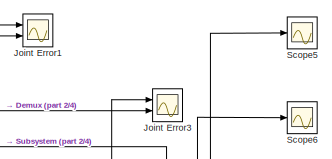
[diagram: root canvas - part 1/4, top right region]
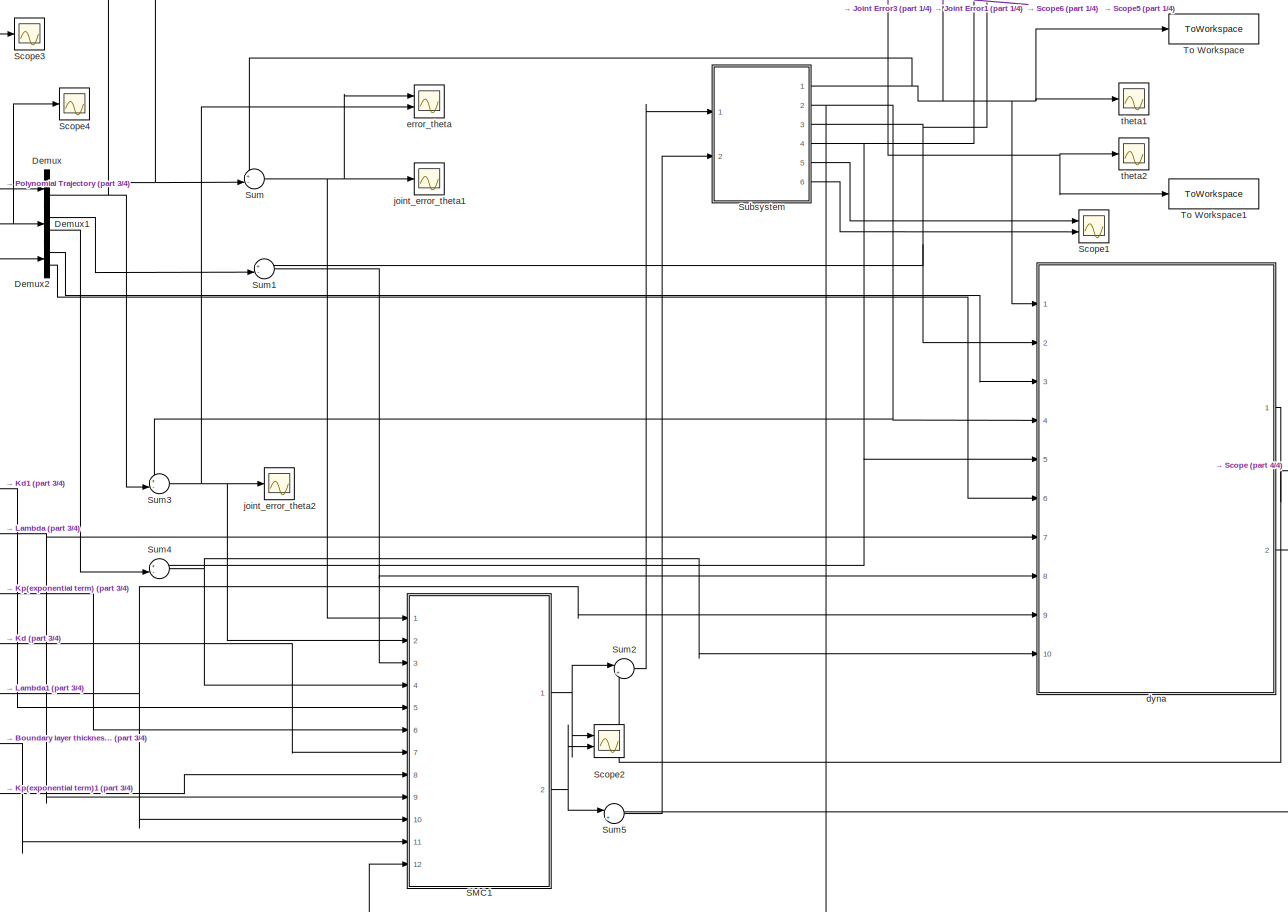
[diagram: root canvas - part 2/4, most of the canvas]
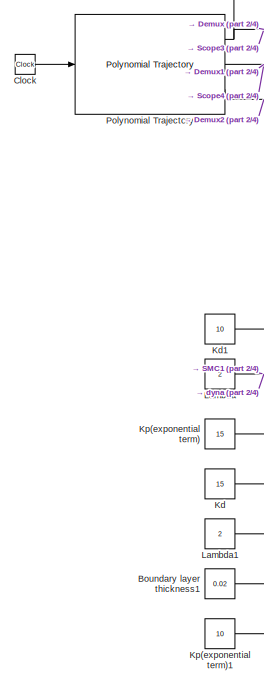
[diagram: root canvas - part 3/4, middle left region]
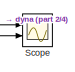
[diagram: root canvas - part 4/4, middle right region]
MODEL slx_921b18136193
KIND model
CONFIG AbsTol = auto
CONFIG EnableMultiTasking = off
CONFIG FixedStep = 0.002
CONFIG MaxStep = auto
CONFIG MinStep = auto
CONFIG RelTol = 1e-3
CONFIG SampleTimeConstraint = Unconstrained
CONFIG Solver = FixedStepAuto
CONFIG SolverName = FixedStepAuto
CONFIG StartTime = 0.0
CONFIG StopTime = 10.0
BLOCK [Constant] Boundary layer thickness1
  Value = 0.02
BLOCK [Clock] Clock
BLOCK [Demux] Demux
  DisplayOption = bar
  Outputs = 2
  Ports = [1, 2]
BLOCK [Demux] Demux1
  DisplayOption = bar
  Outputs = 2
  Ports = [1, 2]
BLOCK [Demux] Demux2
  DisplayOption = bar
  Outputs = 2
  Ports = [1, 2]
BLOCK [Scope] Joint Error1
  Floating = off
  NumInputPorts = 2
  Ports = [2]
  ScopeSpecificationString = Simulink.scopes.TimeScopeBlockCfg('CurrentConfiguration', extmgr.ConfigurationSet(extmgr.Configuration('Core','General UI',true,'FigureColor',[1 1 1]),extmgr.Configuration('Core','Source UI',true),extmgr.Configuration('Sources','WiredSimulink',true,'DataLoggingVariableName','ScopeData7'),extmgr.Configuration('Visuals','Time Domain',true,'SerializedDisplays',{struct('MinYLimReal','-0.19734','MaxYLi...<+1809ch>
BLOCK [Scope] Joint Error3
  Floating = off
  NumInputPorts = 2
  Ports = [2]
  ScopeSpecificationString = Simulink.scopes.TimeScopeBlockCfg('CurrentConfiguration', extmgr.ConfigurationSet(extmgr.Configuration('Core','General UI',true,'FigureColor',[1 1 1]),extmgr.Configuration('Core','Source UI',true),extmgr.Configuration('Sources','WiredSimulink',true,'DataLoggingVariableName','ScopeData4'),extmgr.Configuration('Visuals','Time Domain',true,'SerializedDisplays',{struct('MinYLimReal','-0.09817','MaxYLi...<+1869ch>
BLOCK [Constant] Kd
  Value = 15
BLOCK [Constant] Kd1
  Value = 10
BLOCK [Constant] Kp(exponential term)
  Value = 15
BLOCK [Constant] Kp(exponential term)1
  Value = 10
BLOCK [Constant] Lambda
  Value = 2
BLOCK [Constant] Lambda1
  Value = 2
BLOCK [Reference] Polynomial Trajectory  REF=robotcorelib/Polynomial Trajectory
  Ports = [1, 3]
  SourceBlock = robotcorelib/Polynomial Trajectory
  SourceProductBaseCode = RO
  SourceProductName = Robotics System Toolbox
  SourceType = robotics.slcore.internal.block.PolyTrajSys
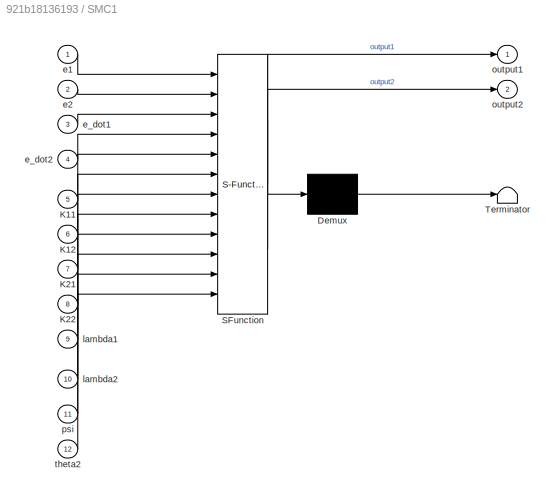
BLOCK [SubSystem] SMC1
  ErrorFcn = Stateflow.Translate.translate
  PermitHierarchicalResolution = ExplicitOnly
  Ports = [12, 2]
  RequestExecContextInheritance = off
  SFBlockType = MATLAB Function
  TreatAsAtomicUnit = on
BLOCK [Demux] SMC1/ Demux 
  Outputs = 1
  Ports = [1, 1]
BLOCK [S-Function] SMC1/ SFunction 
  EnableBusSupport = on
  FunctionName = sf_sfun
  PortCounts = [12 3]
  Ports = [12, 3]
  SFcnIsStateOwnerBlock = off
  SFunctionDeploymentMode = off
  Tag = Stateflow S-Function 3
BLOCK [Terminator] SMC1/ Terminator 
BLOCK [Inport] SMC1/K11
  IconDisplay = Port number
  Port = 5
BLOCK [Inport] SMC1/K12
  IconDisplay = Port number
  Port = 6
BLOCK [Inport] SMC1/K21
  IconDisplay = Port number
  Port = 7
BLOCK [Inport] SMC1/K22
  IconDisplay = Port number
  Port = 8
BLOCK [Inport] SMC1/e1
  IconDisplay = Port number
BLOCK [Inport] SMC1/e2
  IconDisplay = Port number
  Port = 2
BLOCK [Inport] SMC1/e_dot1
  IconDisplay = Port number
  Port = 3
BLOCK [Inport] SMC1/e_dot2
  IconDisplay = Port number
  Port = 4
BLOCK [Inport] SMC1/lambda1
  IconDisplay = Port number
  Port = 9
BLOCK [Inport] SMC1/lambda2
  IconDisplay = Port number
  Port = 10
BLOCK [Outport] SMC1/output1
  IconDisplay = Port number
BLOCK [Outport] SMC1/output2
  IconDisplay = Port number
  Port = 2
BLOCK [Inport] SMC1/psi
  IconDisplay = Port number
  Port = 11
BLOCK [Inport] SMC1/theta2
  IconDisplay = Port number
  Port = 12
BLOCK [Scope] Scope
  Floating = off
  NumInputPorts = 2
  Ports = [2]
  ScopeSpecificationString = Simulink.scopes.TimeScopeBlockCfg('CurrentConfiguration', extmgr.ConfigurationSet(extmgr.Configuration('Core','General UI',true),extmgr.Configuration('Core','Source UI',true),extmgr.Configuration('Sources','WiredSimulink',true,'DataLoggingVariableName','ScopeData1'),extmgr.Configuration('Visuals','Time Domain',true,'SerializedDisplays',{struct('MinYLimReal','-0.10755','MaxYLimReal','0.11435','YLab...<+1386ch>
BLOCK [Scope] Scope1
  Floating = off
  NumInputPorts = 2
  Ports = [2]
  ScopeSpecificationString = Simulink.scopes.TimeScopeBlockCfg('CurrentConfiguration', extmgr.ConfigurationSet(extmgr.Configuration('Core','General UI',true),extmgr.Configuration('Core','Source UI',true),extmgr.Configuration('Sources','WiredSimulink',true,'DataLoggingVariableName','ScopeData2'),extmgr.Configuration('Visuals','Time Domain',true,'SerializedDisplays',{struct('MinYLimReal','-0.67756','MaxYLimReal','1.2565','YLabe...<+1402ch>
BLOCK [Scope] Scope2
  Floating = off
  NumInputPorts = 2
  Ports = [2]
  ScopeSpecificationString = Simulink.scopes.TimeScopeBlockCfg('CurrentConfiguration', extmgr.ConfigurationSet(extmgr.Configuration('Core','General UI',true),extmgr.Configuration('Core','Source UI',true),extmgr.Configuration('Sources','WiredSimulink',true,'DataLoggingVariableName','ScopeData2'),extmgr.Configuration('Visuals','Time Domain',true,'SerializedDisplays',{struct('MinYLimReal','-1.51143','MaxYLimReal','1.69983','YLab...<+1386ch>
BLOCK [Scope] Scope3
  Floating = off
  NumInputPorts = 1
  Ports = [1]
  ScopeSpecificationString = Simulink.scopes.TimeScopeBlockCfg('CurrentConfiguration', extmgr.ConfigurationSet(extmgr.Configuration('Core','General UI',true),extmgr.Configuration('Core','Source UI',true),extmgr.Configuration('Sources','WiredSimulink',true,'DataLoggingVariableName','ScopeData1'),extmgr.Configuration('Visuals','Time Domain',true,'SerializedDisplays',{struct('MinYLimReal','-0.19635','MaxYLimReal','1.76715','YLab...<+1412ch>
BLOCK [Scope] Scope4
  Floating = off
  NumInputPorts = 1
  Ports = [1]
  ScopeSpecificationString = Simulink.scopes.TimeScopeBlockCfg('CurrentConfiguration', extmgr.ConfigurationSet(extmgr.Configuration('Core','General UI',true),extmgr.Configuration('Core','Source UI',true),extmgr.Configuration('Sources','WiredSimulink',true,'DataLoggingVariableName','ScopeData2'),extmgr.Configuration('Visuals','Time Domain',true,'SerializedDisplays',{struct('MinYLimReal','-0.0589','MaxYLimReal','0.53014','YLabe...<+1410ch>
BLOCK [Scope] Scope5
  Floating = off
  NumInputPorts = 1
  Ports = [1]
  ScopeSpecificationString = Simulink.scopes.TimeScopeBlockCfg('CurrentConfiguration', extmgr.ConfigurationSet(extmgr.Configuration('Core','General UI',true),extmgr.Configuration('Core','Source UI',true),extmgr.Configuration('Sources','WiredSimulink',true,'DataLoggingVariableName','ScopeData3'),extmgr.Configuration('Visuals','Time Domain',true,'SerializedDisplays',{struct('MinYLimReal','-0.06049','MaxYLimReal','0.53029','YLab...<+1370ch>
BLOCK [Scope] Scope6
  Floating = off
  NumInputPorts = 1
  Ports = [1]
  ScopeSpecificationString = Simulink.scopes.TimeScopeBlockCfg('CurrentConfiguration', extmgr.ConfigurationSet(extmgr.Configuration('Core','General UI',true),extmgr.Configuration('Core','Source UI',true),extmgr.Configuration('Sources','WiredSimulink',true,'DataLoggingVariableName','ScopeData5'),extmgr.Configuration('Visuals','Time Domain',true,'SerializedDisplays',{struct('MinYLimReal','-0.02942','MaxYLimReal','0.26477','YLab...<+1370ch>
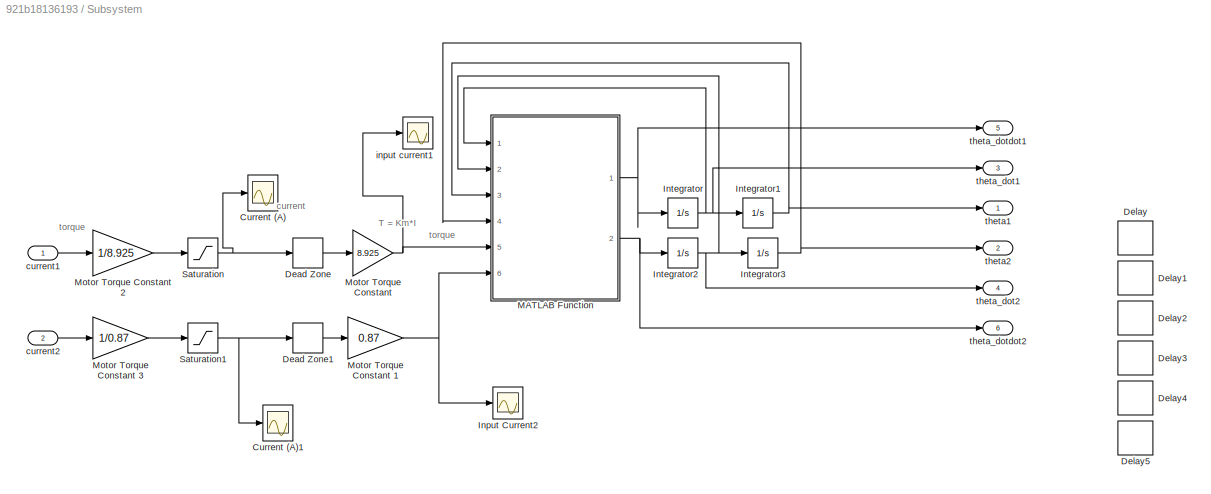
BLOCK [SubSystem] Subsystem
  Ports = [2, 6]
  RequestExecContextInheritance = off
BLOCK [Scope] Subsystem/Current (A)
  Floating = off
  NumInputPorts = 1
  Ports = [1]
  ScopeSpecificationString = Simulink.scopes.TimeScopeBlockCfg('CurrentConfiguration', extmgr.ConfigurationSet(extmgr.Configuration('Core','General UI',true,'FigureColor',[0.831372549019608 0.815686274509804 0.784313725490196]),extmgr.Configuration('Core','Source UI',true),extmgr.Configuration('Sources','WiredSimulink',true,'DataLoggingVariableName','ScopeData6','DataLoggingSaveFormat','Array','DataLoggingDecimation','1','Dat...<+1918ch>
BLOCK [Scope] Subsystem/Current (A)1
  Floating = off
  NumInputPorts = 1
  Ports = [1]
  ScopeSpecificationString = Simulink.scopes.TimeScopeBlockCfg('CurrentConfiguration', extmgr.ConfigurationSet(extmgr.Configuration('Core','General UI',true,'FigureColor',[0.831372549019608 0.815686274509804 0.784313725490196]),extmgr.Configuration('Core','Source UI',true),extmgr.Configuration('Sources','WiredSimulink',true,'DataLoggingVariableName','ScopeData8','DataLoggingSaveFormat','Array','DataLoggingDecimation','1','Dat...<+1923ch>
BLOCK [DeadZone] Subsystem/Dead Zone
  LowerValue = -0.15
  UpperValue = 0.15
BLOCK [DeadZone] Subsystem/Dead Zone1
  LowerValue = -0.15
  UpperValue = 0.15
BLOCK [Delay] Subsystem/Delay
  Commented = on
  DelayLength = 1
  InputPortMap = u0
  Ports = [1, 1]
  SampleTime = 0.002
BLOCK [Delay] Subsystem/Delay1
  Commented = on
  DelayLength = 1
  InputPortMap = u0
  Ports = [1, 1]
  SampleTime = 0.002
BLOCK [Delay] Subsystem/Delay2
  Commented = on
  DelayLength = 1
  InputPortMap = u0
  Ports = [1, 1]
  SampleTime = 0.002
BLOCK [Delay] Subsystem/Delay3
  Commented = on
  DelayLength = 1
  InputPortMap = u0
  Ports = [1, 1]
  SampleTime = 0.002
BLOCK [Delay] Subsystem/Delay4
  Commented = on
  DelayLength = 1
  InputPortMap = u0
  Ports = [1, 1]
  SampleTime = 0.002
BLOCK [Delay] Subsystem/Delay5
  Commented = on
  DelayLength = 1
  InputPortMap = u0
  Ports = [1, 1]
  SampleTime = 0.002
BLOCK [Scope] Subsystem/Input Current2
  Floating = off
  NumInputPorts = 1
  Ports = [1]
  ScopeSpecificationString = Simulink.scopes.TimeScopeBlockCfg('CurrentConfiguration', extmgr.ConfigurationSet(extmgr.Configuration('Core','General UI',true,'FigureColor',[1 1 1]),extmgr.Configuration('Core','Source UI',true),extmgr.Configuration('Sources','WiredSimulink',true,'DataLoggingVariableName','ScopeData3'),extmgr.Configuration('Visuals','Time Domain',true,'SerializedDisplays',{struct('MinYLimReal','-0.01459','MaxYLi...<+1598ch>
BLOCK [Integrator] Subsystem/Integrator
  Ports = [1, 1]
BLOCK [Integrator] Subsystem/Integrator1
  Ports = [1, 1]
BLOCK [Integrator] Subsystem/Integrator2
  Ports = [1, 1]
BLOCK [Integrator] Subsystem/Integrator3
  Ports = [1, 1]
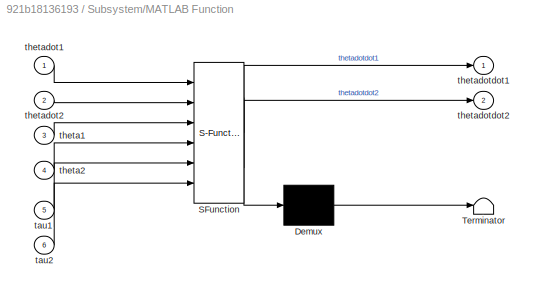
BLOCK [SubSystem] Subsystem/MATLAB Function
  ErrorFcn = Stateflow.Translate.translate
  PermitHierarchicalResolution = ExplicitOnly
  Ports = [6, 2]
  RequestExecContextInheritance = off
  SFBlockType = MATLAB Function
  TreatAsAtomicUnit = on
BLOCK [Demux] Subsystem/MATLAB Function/ Demux 
  Outputs = 1
  Ports = [1, 1]
BLOCK [S-Function] Subsystem/MATLAB Function/ SFunction 
  EnableBusSupport = on
  FunctionName = sf_sfun
  PortCounts = [6 3]
  Ports = [6, 3]
  SFcnIsStateOwnerBlock = off
  SFunctionDeploymentMode = off
  Tag = Stateflow S-Function 2
BLOCK [Terminator] Subsystem/MATLAB Function/ Terminator 
BLOCK [Inport] Subsystem/MATLAB Function/tau1
  IconDisplay = Port number
  Port = 5
BLOCK [Inport] Subsystem/MATLAB Function/tau2
  IconDisplay = Port number
  Port = 6
BLOCK [Inport] Subsystem/MATLAB Function/theta1
  IconDisplay = Port number
  Port = 3
BLOCK [Inport] Subsystem/MATLAB Function/theta2
  IconDisplay = Port number
  Port = 4
BLOCK [Inport] Subsystem/MATLAB Function/thetadot1
  IconDisplay = Port number
BLOCK [Inport] Subsystem/MATLAB Function/thetadot2
  IconDisplay = Port number
  Port = 2
BLOCK [Outport] Subsystem/MATLAB Function/thetadotdot1
  IconDisplay = Port number
BLOCK [Outport] Subsystem/MATLAB Function/thetadotdot2
  IconDisplay = Port number
  Port = 2
BLOCK [Gain] Subsystem/Motor Torque Constant 
  Gain = 8.925
  OutDataTypeStr = Inherit: Inherit via internal rule
  ParamDataTypeStr = Inherit: Inherit via internal rule
  SaturateOnIntegerOverflow = off
BLOCK [Gain] Subsystem/Motor Torque Constant 1
  Gain = 0.87
  OutDataTypeStr = Inherit: Inherit via internal rule
  ParamDataTypeStr = Inherit: Inherit via internal rule
  SaturateOnIntegerOverflow = off
BLOCK [Gain] Subsystem/Motor Torque Constant 2
  Gain = 1/8.925
  OutDataTypeStr = Inherit: Inherit via internal rule
  ParamDataTypeStr = Inherit: Inherit via internal rule
  SaturateOnIntegerOverflow = off
BLOCK [Gain] Subsystem/Motor Torque Constant 3
  Gain = 1/0.87
  OutDataTypeStr = Inherit: Inherit via internal rule
  ParamDataTypeStr = Inherit: Inherit via internal rule
  SaturateOnIntegerOverflow = off
BLOCK [Saturate] Subsystem/Saturation
  InputPortMap = u0
  LowerLimit = -0.94
  Ports = [1, 1]
  UpperLimit = 0.94
BLOCK [Saturate] Subsystem/Saturation1
  InputPortMap = u0
  LowerLimit = -0.94
  Ports = [1, 1]
  UpperLimit = 0.94
BLOCK [Inport] Subsystem/current1
  IconDisplay = Port number
BLOCK [Inport] Subsystem/current2 
  IconDisplay = Port number
  Port = 2
BLOCK [Scope] Subsystem/input current1
  Floating = off
  NumInputPorts = 1
  Ports = [1]
  ScopeSpecificationString = Simulink.scopes.TimeScopeBlockCfg('CurrentConfiguration', extmgr.ConfigurationSet(extmgr.Configuration('Core','General UI',true,'FigureColor',[1 1 1]),extmgr.Configuration('Core','Source UI',true),extmgr.Configuration('Sources','WiredSimulink',true,'DataLoggingVariableName','ScopeData6'),extmgr.Configuration('Visuals','Time Domain',true,'SerializedDisplays',{struct('MinYLimReal','-0.20376','MaxYLi...<+1603ch>
BLOCK [Outport] Subsystem/theta1
  IconDisplay = Port number
BLOCK [Outport] Subsystem/theta2
  IconDisplay = Port number
  Port = 2
BLOCK [Outport] Subsystem/theta_dot1
  IconDisplay = Port number
  Port = 3
BLOCK [Outport] Subsystem/theta_dot2
  IconDisplay = Port number
  Port = 4
BLOCK [Outport] Subsystem/theta_dotdot1
  IconDisplay = Port number
  Port = 5
BLOCK [Outport] Subsystem/theta_dotdot2
  IconDisplay = Port number
  Port = 6
BLOCK [Sum] Sum
  IconShape = round
  InputSameDT = off
  Inputs = +-|
  OutDataTypeStr = Inherit: Inherit via internal rule
  Ports = [2, 1]
  SaturateOnIntegerOverflow = off
BLOCK [Sum] Sum1
  IconShape = round
  InputSameDT = off
  Inputs = +-|
  OutDataTypeStr = Inherit: Inherit via internal rule
  Ports = [2, 1]
  SaturateOnIntegerOverflow = off
BLOCK [Sum] Sum2
  IconShape = round
  InputSameDT = off
  Inputs = |++
  OutDataTypeStr = Inherit: Inherit via internal rule
  Ports = [2, 1]
  SaturateOnIntegerOverflow = off
BLOCK [Sum] Sum3
  IconShape = round
  InputSameDT = off
  Inputs = +-|
  OutDataTypeStr = Inherit: Inherit via internal rule
  Ports = [2, 1]
  SaturateOnIntegerOverflow = off
BLOCK [Sum] Sum4
  IconShape = round
  InputSameDT = off
  Inputs = +-|
  OutDataTypeStr = Inherit: Inherit via internal rule
  Ports = [2, 1]
  SaturateOnIntegerOverflow = off
BLOCK [Sum] Sum5
  IconShape = round
  InputSameDT = off
  Inputs = |++
  OutDataTypeStr = Inherit: Inherit via internal rule
  Ports = [2, 1]
  SaturateOnIntegerOverflow = off
BLOCK [ToWorkspace] To Workspace
  FixptAsFi = on
  MaxDataPoints = inf
  Ports = [1]
  SampleTime = -1
  SaveFormat = Timeseries
  VariableName = stage1
BLOCK [ToWorkspace] To Workspace1
  FixptAsFi = on
  MaxDataPoints = inf
  Ports = [1]
  SampleTime = -1
  SaveFormat = Timeseries
  VariableName = stage2
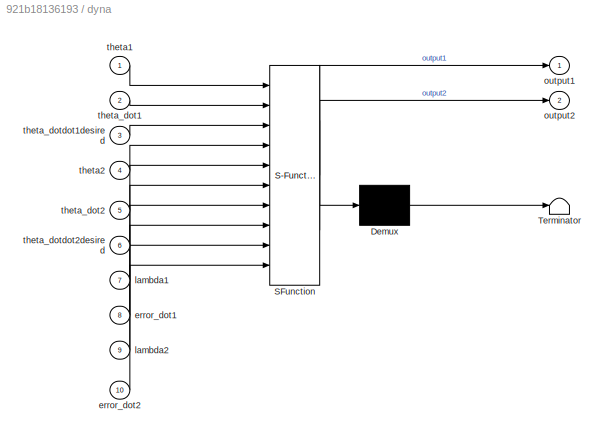
BLOCK [SubSystem] dyna
  ErrorFcn = Stateflow.Translate.translate
  PermitHierarchicalResolution = ExplicitOnly
  Ports = [10, 2]
  RequestExecContextInheritance = off
  SFBlockType = MATLAB Function
  TreatAsAtomicUnit = on
BLOCK [Demux] dyna/ Demux 
  Outputs = 1
  Ports = [1, 1]
BLOCK [S-Function] dyna/ SFunction 
  EnableBusSupport = on
  FunctionName = sf_sfun
  PortCounts = [10 3]
  Ports = [10, 3]
  SFcnIsStateOwnerBlock = off
  SFunctionDeploymentMode = off
  Tag = Stateflow S-Function 1
BLOCK [Terminator] dyna/ Terminator 
BLOCK [Inport] dyna/error_dot1
  IconDisplay = Port number
  Port = 8
BLOCK [Inport] dyna/error_dot2
  IconDisplay = Port number
  Port = 10
BLOCK [Inport] dyna/lambda1
  IconDisplay = Port number
  Port = 7
BLOCK [Inport] dyna/lambda2
  IconDisplay = Port number
  Port = 9
BLOCK [Outport] dyna/output1
  IconDisplay = Port number
BLOCK [Outport] dyna/output2
  IconDisplay = Port number
  Port = 2
BLOCK [Inport] dyna/theta1
  IconDisplay = Port number
BLOCK [Inport] dyna/theta2
  IconDisplay = Port number
  Port = 4
BLOCK [Inport] dyna/theta_dot1
  IconDisplay = Port number
  Port = 2
BLOCK [Inport] dyna/theta_dot2
  IconDisplay = Port number
  Port = 5
BLOCK [Inport] dyna/theta_dotdot1desired
  IconDisplay = Port number
  Port = 3
BLOCK [Inport] dyna/theta_dotdot2desired
  IconDisplay = Port number
  Port = 6
BLOCK [Scope] error_theta
  Floating = off
  NumInputPorts = 2
  Ports = [2]
  ScopeSpecificationString = Simulink.scopes.TimeScopeBlockCfg('CurrentConfiguration', extmgr.ConfigurationSet(extmgr.Configuration('Core','General UI',true,'FigureColor',[1 1 1]),extmgr.Configuration('Core','Source UI',true),extmgr.Configuration('Sources','WiredSimulink',true,'DataLoggingVariableName','ScopeData1'),extmgr.Configuration('Visuals','Time Domain',true,'SerializedDisplays',{struct('MinYLimReal','-0.01677','MaxYLi...<+1825ch>
BLOCK [Scope] joint_error_theta1
  Floating = off
  NumInputPorts = 1
  Ports = [1]
  ScopeSpecificationString = Simulink.scopes.TimeScopeBlockCfg('CurrentConfiguration', extmgr.ConfigurationSet(extmgr.Configuration('Core','General UI',true),extmgr.Configuration('Core','Source UI',true),extmgr.Configuration('Sources','WiredSimulink',true,'DataLoggingVariableName','ScopeData2'),extmgr.Configuration('Visuals','Time Domain',true,'SerializedDisplays',{struct('MinYLimReal','-0.00561','MaxYLimReal','0.00494','YLab...<+1391ch>
BLOCK [Scope] joint_error_theta2
  Floating = off
  NumInputPorts = 1
  Ports = [1]
  ScopeSpecificationString = Simulink.scopes.TimeScopeBlockCfg('CurrentConfiguration', extmgr.ConfigurationSet(extmgr.Configuration('Core','General UI',true),extmgr.Configuration('Core','Source UI',true),extmgr.Configuration('Sources','WiredSimulink',true,'DataLoggingVariableName','ScopeData3'),extmgr.Configuration('Visuals','Time Domain',true,'SerializedDisplays',{struct('MinYLimReal','-0.01508','MaxYLimReal','0.0072','YLabe...<+1361ch>
BLOCK [Scope] theta1
  Floating = off
  NumInputPorts = 1
  Ports = [1]
  ScopeSpecificationString = Simulink.scopes.TimeScopeBlockCfg('CurrentConfiguration', extmgr.ConfigurationSet(extmgr.Configuration('Core','General UI',true),extmgr.Configuration('Core','Source UI',true),extmgr.Configuration('Sources','WiredSimulink',true,'DataLoggingVariableName','ScopeData4'),extmgr.Configuration('Visuals','Time Domain',true,'SerializedDisplays',{struct('MinYLimReal','-0.19734','MaxYLimReal','1.77593','YLab...<+1399ch>
BLOCK [Scope] theta2
  Floating = off
  NumInputPorts = 1
  Ports = [1]
  ScopeSpecificationString = Simulink.scopes.TimeScopeBlockCfg('CurrentConfiguration', extmgr.ConfigurationSet(extmgr.Configuration('Core','General UI',true),extmgr.Configuration('Core','Source UI',true),extmgr.Configuration('Sources','WiredSimulink',true,'DataLoggingVariableName','ScopeData5'),extmgr.Configuration('Visuals','Time Domain',true,'SerializedDisplays',{struct('MinYLimReal','-0.09814','MaxYLimReal','0.88323','YLab...<+1399ch>
ANNOTATION Subsystem: T = Km*I
ANNOTATION Subsystem: current
ANNOTATION Subsystem: torque
LINE Boundary layer thickness1:1 -> SMC1:11
LINE Clock:1 -> Polynomial Trajectory:1
LINE Demux1:1 -> Sum1:2
LINE Demux1:2 -> Sum4:2
LINE Demux2:1 -> dyna:3
LINE Demux2:2 -> dyna:6
NET Demux:1 -> Joint Error1:2, Sum:2
NET Demux:2 -> Joint Error3:2, Sum3:2
LINE Kd1:1 -> SMC1:5
LINE Kd:1 -> SMC1:7
LINE Kp(exponential term)1:1 -> SMC1:8
LINE Kp(exponential term):1 -> SMC1:6
NET Lambda1:1 -> SMC1:10, dyna:9
NET Lambda:1 -> SMC1:9, dyna:7
NET Polynomial Trajectory:1 -> Demux:1, Scope3:1
NET Polynomial Trajectory:2 -> Demux1:1, Scope4:1
LINE Polynomial Trajectory:3 -> Demux2:1
NET SMC1:1 -> Scope2:1, Sum2:1
NET SMC1:2 -> Scope2:2, Sum5:1
LINE Subsystem/Dead Zone1:1 -> Subsystem/Motor Torque Constant 1:1
LINE Subsystem/Dead Zone:1 -> Subsystem/Motor Torque Constant :1
NET Subsystem/Integrator1:1 -> Subsystem/MATLAB Function:3, Subsystem/theta1:1
NET Subsystem/Integrator2:1 -> Subsystem/Integrator3:1, Subsystem/MATLAB Function:2, Subsystem/theta_dot2:1
NET Subsystem/Integrator3:1 -> Subsystem/MATLAB Function:4, Subsystem/theta2:1
NET Subsystem/Integrator:1 -> Subsystem/Integrator1:1, Subsystem/MATLAB Function:1, Subsystem/theta_dot1:1
NET Subsystem/MATLAB Function:1 -> Subsystem/Integrator:1, Subsystem/theta_dotdot1:1
NET Subsystem/MATLAB Function:2 -> Subsystem/Integrator2:1, Subsystem/theta_dotdot2:1
NET Subsystem/Motor Torque Constant 1:1 -> Subsystem/Input Current2:1, Subsystem/MATLAB Function:6
LINE Subsystem/Motor Torque Constant 2:1 -> Subsystem/Saturation:1
LINE Subsystem/Motor Torque Constant 3:1 -> Subsystem/Saturation1:1
NET Subsystem/Motor Torque Constant :1 -> Subsystem/MATLAB Function:5, Subsystem/input current1:1
NET Subsystem/Saturation1:1 -> Subsystem/Current (A)1:1, Subsystem/Dead Zone1:1
NET Subsystem/Saturation:1 -> Subsystem/Current (A):1, Subsystem/Dead Zone:1
LINE Subsystem/current1:1 -> Subsystem/Motor Torque Constant 2:1
LINE Subsystem/current2 :1 -> Subsystem/Motor Torque Constant 3:1
NET Subsystem:1 -> Joint Error1:1, Sum:1, To Workspace:1, dyna:1, theta1:1
NET Subsystem:2 -> Joint Error3:1, SMC1:12, Sum3:1, To Workspace1:1, dyna:4, theta2:1
NET Subsystem:3 -> Scope5:1, Sum1:1, dyna:2
NET Subsystem:4 -> Scope6:1, Sum4:1, dyna:5
LINE Subsystem:5 -> Scope1:1
LINE Subsystem:6 -> Scope1:2
NET Sum1:1 -> SMC1:3, dyna:8
LINE Sum2:1 -> Subsystem:1
NET Sum3:1 -> SMC1:2, error_theta:2, joint_error_theta2:1
NET Sum4:1 -> SMC1:4, dyna:10
LINE Sum5:1 -> Subsystem:2
NET Sum:1 -> SMC1:1, error_theta:1, joint_error_theta1:1
NET dyna:1 -> Scope:1, Sum2:2
NET dyna:2 -> Scope:2, Sum5:2
note: NET lines group one-source signal fan-out (src -> all destinations, sorted); 1:1 wires keep LINE
CHART dyna states=1 transitions=1
  STATE_LABEL 'eML_blk_kernel()'
  STATE_LABEL 'SCRIPT:\nfunction [output1, output2] = dyna(theta1, theta_dot1, theta_dotdot1desired, theta2, theta_dot2, theta_dotdot2desired, lambda1, error_dot1, lambda2, error_dot2)\n\nm1 =  1.51 ; \nm2 = 0.87326;\nL1 = 0.343;\nL2 = 0.267;\nLc1 = 0.1590;\nLc2 = 0.0550;\nI1 = 0.0392;\nI2 = 0.0081;\nB1 = 0.070364;\nB2 = 0.028211;\n\n% m1 = 0.5; \n% m2 = 1;\n% L1 = 0.343;\n% L2 = 0.267;\n% Lc1 = 0.2;\n% Lc2 = 0.25;\n% I1 = 0.01;\n% ...<+614ch>'
CHART Subsystem/MATLAB Function states=1 transitions=1
  STATE_LABEL 'eML_blk_kernel()'
  STATE_LABEL 'SCRIPT:\nfunction [thetadotdot1,thetadotdot2] = fcn(thetadot1,thetadot2,theta1,theta2,tau1,tau2)\n%y is thetadotdot\ntau = [tau1;tau2];\n%Veltman Thesis Values\n% m1 = 0.5; \n% m2 = 1;\n% L1 = 0.343;\n% L2 = 0.267;\n% Lc1 = 0.2;\n% Lc2 = 0.25;\n% I1 = 0.01;\n% I2 = 0.01;\n% B1 = 0.070364;\n% B2 = 0.028211;\n\n%Electrical School values\n% m1 =  1.51 ; \n% m2 = 0.87326;\n% L1 = 0.343;\n% L2 = 0.267;\n% Lc1 = 0.1590;\n% L...<+757ch>'
CHART SMC1 states=1 transitions=1
  STATE_LABEL 'eML_blk_kernel()'
  STATE_LABEL 'SCRIPT:\nfunction [output1, output2] = smc(e1, e2, e_dot1, e_dot2, K11, K12, K21, K22, lambda1, lambda2, psi, theta2)\n    s1 = lambda1 * e1 + e_dot1;\n    s2 = lambda2 * e2 + e_dot2;\n         \n    m1 =  1.51 ; \n    m2 = 0.87326;\n    L1 = 0.343;\n    L2 = 0.267;\n    Lc1 = 0.1590;\n    Lc2 = 0.0550;\n    I1 = 0.0392;\n    I2 = 0.0081;\n    B1 = 0.070364;\n    B2 = 0.028211;\n    \n    if (abs(s1) > psi)    \n ...<+524ch>'
